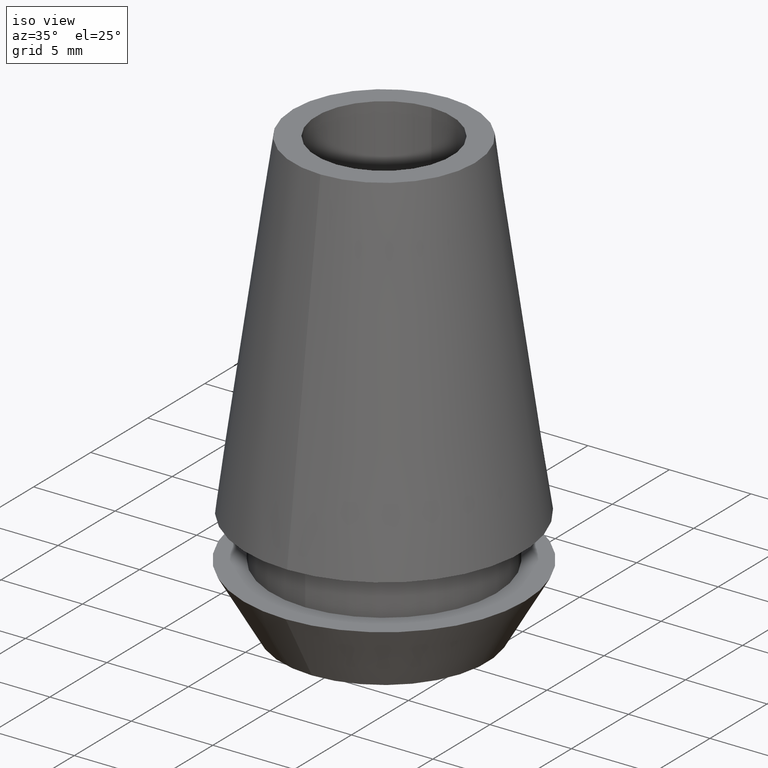
[diagram: clean part render]
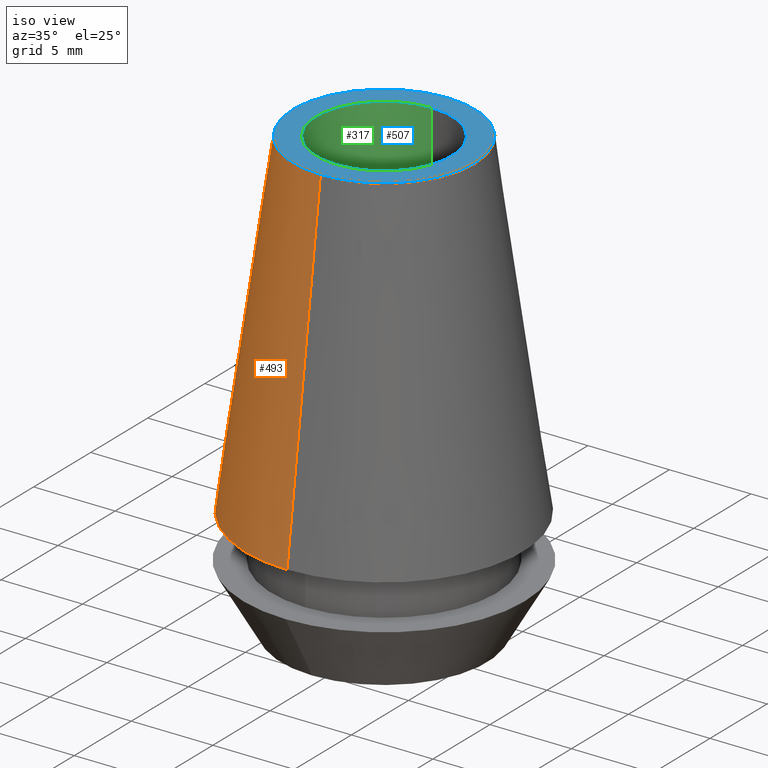
[diagram: same view with three faces highlighted in distinct colors, each labeled with its STEP entity id]
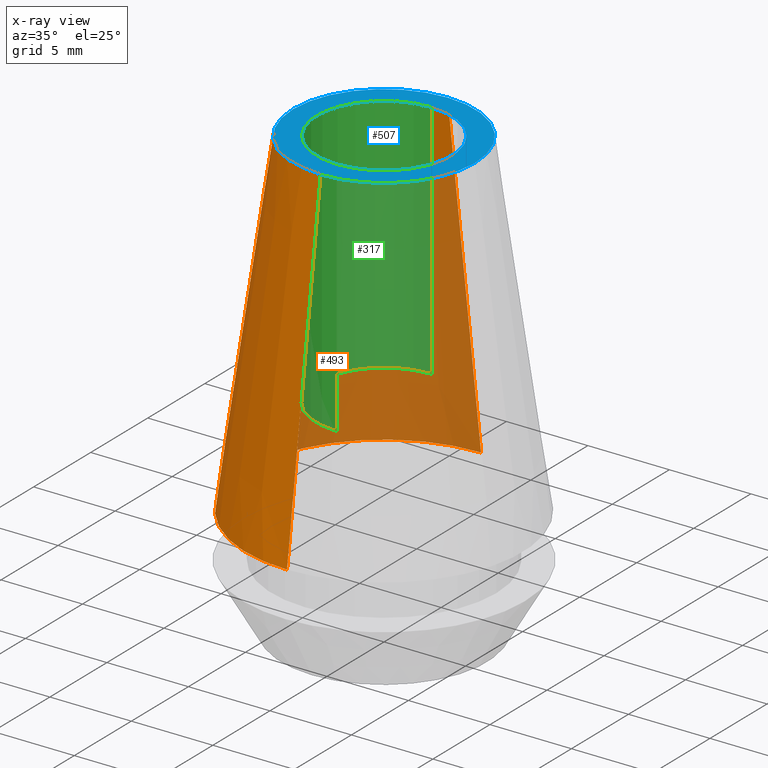
[diagram: x-ray of the same camera — body ghosted, the three highlighted faces saturated]
A machine part, iso view with three faces highlighted in distinct colors.
The next image is the same camera in x-ray (body ghosted, the three faces saturated) — at least one of them is partly hidden behind the body in this view.
Their STEP definitions:

[orange] entity #493 — the highlighted conical surface has half-angle 8 deg.
#178=CARTESIAN_POINT('',(0.E0,1.308412640209E-14,-2.08E1));
#179=DIRECTION('',(0.E0,0.E0,1.E0));
#180=DIRECTION('',(0.E0,1.E0,0.E0));
#181=AXIS2_PLACEMENT_3D('',#178,#179,#180);
#202=DIRECTION('',(0.E0,1.391731009601E-1,-9.902680687416E-1));
#203=VECTOR('',#202,2.100441350839E1);
#204=CARTESIAN_POINT('',(0.E0,5.577076009731E0,-2.842170943040E-14));
#205=LINE('',#204,#203);
#209=DIRECTION('',(0.E0,-1.391731009601E-1,-9.902680687416E-1));
#210=VECTOR('',#209,2.100441350839E1);
#211=CARTESIAN_POINT('',(0.E0,-5.577076009731E0,-2.842170943040E-14));
#212=LINE('',#211,#210);
#216=CARTESIAN_POINT('',(0.E0,1.308412640209E-14,-2.842170943040E-14));
#217=DIRECTION('',(0.E0,0.E0,-1.E0));
#218=DIRECTION('',(0.E0,-1.E0,0.E0));
#219=AXIS2_PLACEMENT_3D('',#216,#217,#218);
#280=CARTESIAN_POINT('',(0.E0,-8.500325371541E0,-2.08E1));
#281=CARTESIAN_POINT('',(0.E0,8.500325371541E0,-2.08E1));
#282=VERTEX_POINT('',#280);
#283=VERTEX_POINT('',#281);
#284=CARTESIAN_POINT('',(0.E0,5.577076009731E0,-2.842170943040E-14));
#285=VERTEX_POINT('',#284);
#286=CARTESIAN_POINT('',(0.E0,-5.577076009731E0,-2.842170943040E-14));
#287=VERTEX_POINT('',#286);
#481=CARTESIAN_POINT('',(0.E0,1.308412640209E-14,-1.04E1));
#482=DIRECTION('',(0.E0,0.E0,-1.E0));
#483=DIRECTION('',(0.E0,-1.E0,0.E0));
#484=AXIS2_PLACEMENT_3D('',#481,#482,#483);
#485=CONICAL_SURFACE('',#484,7.038700690636E0,8.E0);
#486=ORIENTED_EDGE('',*,*,#471,.F.);
#488=ORIENTED_EDGE('',*,*,#487,.F.);
#489=ORIENTED_EDGE('',*,*,#474,.T.);
#490=ORIENTED_EDGE('',*,*,#457,.F.);
#491=EDGE_LOOP('',(#486,#488,#489,#490));
#492=FACE_OUTER_BOUND('',#491,.F.);
#182=CIRCLE('',#181,8.500325371541E0);
#220=CIRCLE('',#219,5.577076009731E0);
#457=EDGE_CURVE('',#283,#282,#182,.T.);
#471=EDGE_CURVE('',#285,#283,#205,.T.);
#474=EDGE_CURVE('',#287,#282,#212,.T.);
#487=EDGE_CURVE('',#287,#285,#220,.T.);
#493=ADVANCED_FACE('',(#492),#485,.T.);

[blue] entity #507 — the highlighted planar face has unit normal (0, 0, -1).
#216=CARTESIAN_POINT('',(0.E0,1.308412640209E-14,-2.842170943040E-14));
#217=DIRECTION('',(0.E0,0.E0,-1.E0));
#218=DIRECTION('',(0.E0,-1.E0,0.E0));
#219=AXIS2_PLACEMENT_3D('',#216,#217,#218);
#224=CARTESIAN_POINT('',(0.E0,1.308412640209E-14,-2.842170943040E-14));
#225=DIRECTION('',(0.E0,0.E0,-1.E0));
#226=DIRECTION('',(0.E0,1.E0,0.E0));
#227=AXIS2_PLACEMENT_3D('',#224,#225,#226);
#232=CARTESIAN_POINT('',(0.E0,1.452614800809E-14,0.E0));
#233=DIRECTION('',(0.E0,0.E0,1.E0));
#234=DIRECTION('',(0.E0,-1.E0,0.E0));
#235=AXIS2_PLACEMENT_3D('',#232,#233,#234);
#240=CARTESIAN_POINT('',(0.E0,1.452614800809E-14,0.E0));
#241=DIRECTION('',(0.E0,0.E0,1.E0));
#242=DIRECTION('',(0.E0,1.E0,0.E0));
#243=AXIS2_PLACEMENT_3D('',#240,#241,#242);
#249=CARTESIAN_POINT('',(0.E0,4.15E0,0.E0));
#251=VERTEX_POINT('',#249);
#252=CARTESIAN_POINT('',(0.E0,-4.15E0,0.E0));
#253=VERTEX_POINT('',#252);
#284=CARTESIAN_POINT('',(0.E0,5.577076009731E0,-2.842170943040E-14));
#285=VERTEX_POINT('',#284);
#286=CARTESIAN_POINT('',(0.E0,-5.577076009731E0,-2.842170943040E-14));
#287=VERTEX_POINT('',#286);
#494=CARTESIAN_POINT('',(0.E0,1.435775907320E-14,0.E0));
#495=DIRECTION('',(0.E0,0.E0,-1.E0));
#496=DIRECTION('',(0.E0,-1.E0,0.E0));
#497=AXIS2_PLACEMENT_3D('',#494,#495,#496);
#498=PLANE('',#497);
#499=ORIENTED_EDGE('',*,*,#487,.T.);
#500=ORIENTED_EDGE('',*,*,#476,.T.);
#501=EDGE_LOOP('',(#499,#500));
#502=FACE_OUTER_BOUND('',#501,.F.);
#503=ORIENTED_EDGE('',*,*,#295,.T.);
#504=ORIENTED_EDGE('',*,*,#313,.T.);
#505=EDGE_LOOP('',(#503,#504));
#506=FACE_BOUND('',#505,.F.);
#220=CIRCLE('',#219,5.577076009731E0);
#228=CIRCLE('',#227,5.577076009731E0);
#236=CIRCLE('',#235,4.15E0);
#244=CIRCLE('',#243,4.15E0);
#295=EDGE_CURVE('',#253,#251,#236,.T.);
#313=EDGE_CURVE('',#251,#253,#244,.T.);
#476=EDGE_CURVE('',#285,#287,#228,.T.);
#487=EDGE_CURVE('',#287,#285,#220,.T.);
#507=ADVANCED_FACE('',(#502,#506),#498,.F.);

[green] entity #317 — the highlighted cylindrical surface (partial cylindrical patch) has radius 4.15 mm, axis along (0, 0, -1).
#17=DIRECTION('',(0.E0,0.E0,1.E0));
#18=VECTOR('',#17,1.4768E1);
#19=CARTESIAN_POINT('',(0.E0,4.15E0,-1.4768E1));
#20=LINE('',#19,#18);
#25=DIRECTION('',(0.E0,0.E0,1.E0));
#26=VECTOR('',#25,1.4768E1);
#27=CARTESIAN_POINT('',(0.E0,-4.15E0,-1.4768E1));
#28=LINE('',#27,#26);
#32=CARTESIAN_POINT('',(0.E0,1.452614800809E-14,-1.4768E1));
#33=DIRECTION('',(0.E0,0.E0,-1.E0));
#34=DIRECTION('',(0.E0,-1.E0,0.E0));
#35=AXIS2_PLACEMENT_3D('',#32,#33,#34);
#240=CARTESIAN_POINT('',(0.E0,1.452614800809E-14,0.E0));
#241=DIRECTION('',(0.E0,0.E0,1.E0));
#242=DIRECTION('',(0.E0,1.E0,0.E0));
#243=AXIS2_PLACEMENT_3D('',#240,#241,#242);
#248=CARTESIAN_POINT('',(0.E0,4.15E0,-1.4768E1));
#249=CARTESIAN_POINT('',(0.E0,4.15E0,0.E0));
#250=VERTEX_POINT('',#248);
#251=VERTEX_POINT('',#249);
#252=CARTESIAN_POINT('',(0.E0,-4.15E0,0.E0));
#253=VERTEX_POINT('',#252);
#254=CARTESIAN_POINT('',(0.E0,-4.15E0,-1.4768E1));
#255=VERTEX_POINT('',#254);
#304=CARTESIAN_POINT('',(0.E0,1.452614800809E-14,1.375E0));
#305=DIRECTION('',(0.E0,0.E0,-1.E0));
#306=DIRECTION('',(0.E0,-1.E0,0.E0));
#307=AXIS2_PLACEMENT_3D('',#304,#305,#306);
#308=CYLINDRICAL_SURFACE('',#307,4.15E0);
#309=ORIENTED_EDGE('',*,*,#293,.F.);
#311=ORIENTED_EDGE('',*,*,#310,.F.);
#312=ORIENTED_EDGE('',*,*,#297,.T.);
#314=ORIENTED_EDGE('',*,*,#313,.F.);
#315=EDGE_LOOP('',(#309,#311,#312,#314));
#316=FACE_OUTER_BOUND('',#315,.F.);
#36=CIRCLE('',#35,4.15E0);
#244=CIRCLE('',#243,4.15E0);
#293=EDGE_CURVE('',#250,#251,#20,.T.);
#297=EDGE_CURVE('',#255,#253,#28,.T.);
#310=EDGE_CURVE('',#255,#250,#36,.T.);
#313=EDGE_CURVE('',#251,#253,#244,.T.);
#317=ADVANCED_FACE('',(#316),#308,.F.);